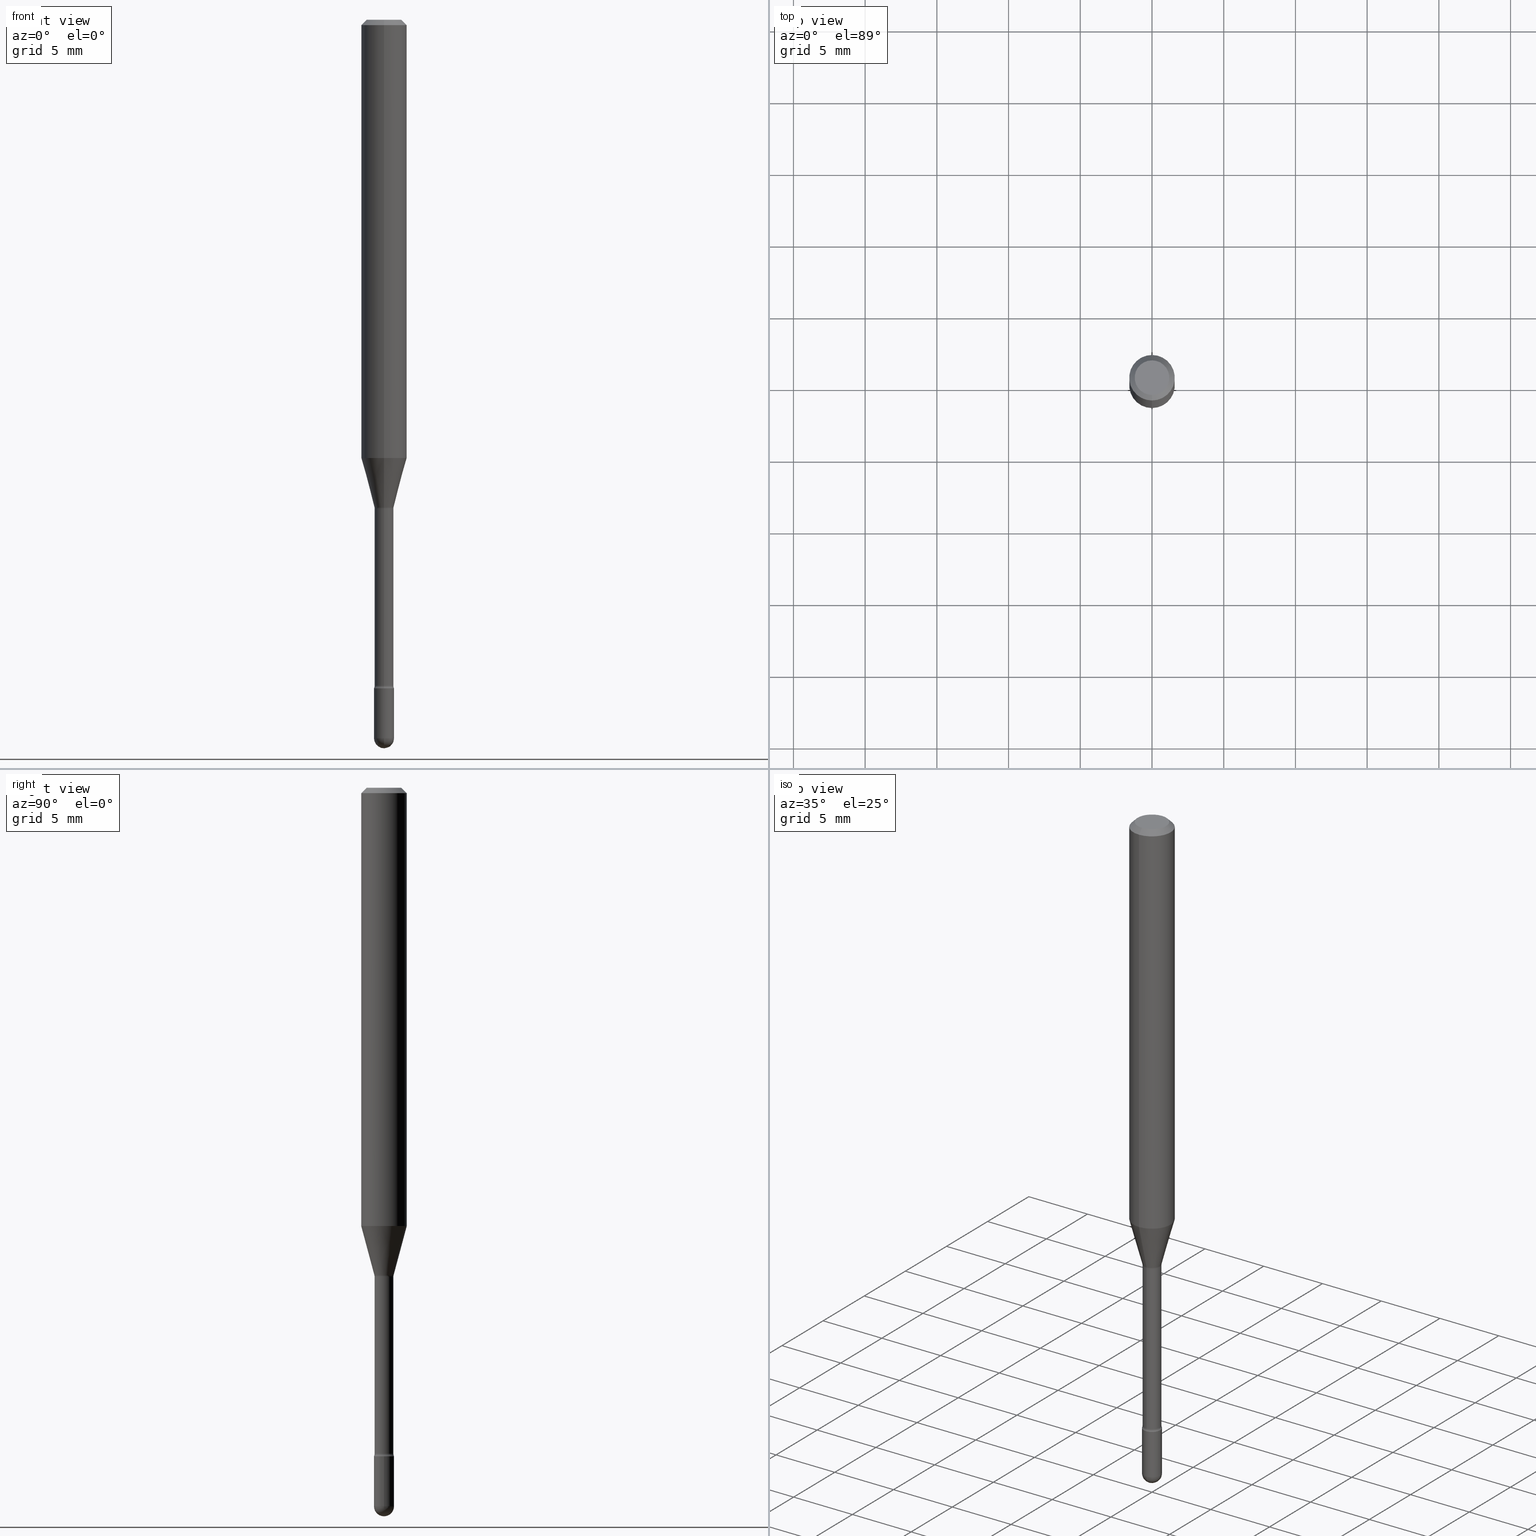
[diagram: canonical four-view strip — front | top / right | iso, engineering-drawing reading convention]
A machine part, canonical four-view strip (front | top / right | iso — engineering-drawing reading convention). The complete STEP part file that produces these views, byte-faithful:
ISO-10303-21;
HEADER;
FILE_DESCRIPTION (( 'STEP AP203' ),
    '1' );
FILE_NAME ('04577.STEP',
    '2024-04-09T22:05:07',
    ( '' ),
    ( '' ),
    'SwSTEP 2.0',
    'SolidWorks 2023',
    '' );
FILE_SCHEMA (( 'CONFIG_CONTROL_DESIGN' ));
ENDSEC;

DATA;
#1 = SPHERICAL_SURFACE ( 'NONE', #218, 0.02749999999999995504 ) ;
#2 = ORIENTED_EDGE ( 'NONE', *, *, #385, .T. ) ;
#3 = APPROVAL ( #21, 'UNSPECIFIED' ) ;
#4 = VECTOR ( 'NONE', #497, 39.37007874015748143 ) ;
#5 = AXIS2_PLACEMENT_3D ( 'NONE', #379, #328, #296 ) ;
#6 = CC_DESIGN_SECURITY_CLASSIFICATION ( #421, ( #31 ) ) ;
#7 = ORIENTED_EDGE ( 'NONE', *, *, #335, .T. ) ;
#8 = EDGE_CURVE ( 'NONE', #546, #187, #37, .T. ) ;
#9 = DIRECTION ( 'NONE',  ( 6.982962677686265922E-15, 1.000000000000000000, 0.000000000000000000 ) ) ;
#10 = ORIENTED_EDGE ( 'NONE', *, *, #281, .F. ) ;
#11 = CARTESIAN_POINT ( 'NONE',  ( 3.281757481429677785E-29, -4.685479927627891882E-15, -1.341974787463811047 ) ) ;
#12 = ORIENTED_EDGE ( 'NONE', *, *, #544, .F. ) ;
#13 = CALENDAR_DATE ( 2024, 9, 4 ) ;
#14 = CARTESIAN_POINT ( 'NONE',  ( 3.668119098727732486E-31, -5.237342459359611244E-17, -0.01500000000000008271 ) ) ;
#15 = ORIENTED_EDGE ( 'NONE', *, *, #351, .F. ) ;
#16 = APPROVAL_ROLE ( '' ) ;
#17 = ORIENTED_EDGE ( 'NONE', *, *, #99, .T. ) ;
#18 = DIRECTION ( 'NONE',  ( 1.000000000000000000, -7.105427357601001070E-15, 4.926316491942401120E-29 ) ) ;
#19 = AXIS2_PLACEMENT_3D ( 'NONE', #432, #309, #221 ) ;
#20 = AXIS2_PLACEMENT_3D ( 'NONE', #25, #542, #452 ) ;
#21 = APPROVAL_STATUS ( 'not_yet_approved' ) ;
#22 = EDGE_LOOP ( 'NONE', ( #283, #443, #486, #26 ) ) ;
#23 = DIRECTION ( 'NONE',  ( -1.000000000000000000, 6.982962677686265922E-15, -4.883557194083112340E-29 ) ) ;
#24 = EDGE_CURVE ( 'NONE', #423, #316, #556, .T. ) ;
#25 = CARTESIAN_POINT ( 'NONE',  ( 0.000000000000000000, 0.000000000000000000, 0.000000000000000000 ) ) ;
#26 = ORIENTED_EDGE ( 'NONE', *, *, #257, .F. ) ;
#27 = DIRECTION ( 'NONE',  ( 7.105427357601001859E-15, 1.000000000000000000, 0.000000000000000000 ) ) ;
#28 = ORIENTED_EDGE ( 'NONE', *, *, #248, .F. ) ;
#29 = CARTESIAN_POINT ( 'NONE',  ( -1.953992523339791111E-16, -0.02750000000000685924, -1.972499999999999698 ) ) ;
#30 = CIRCLE ( 'NONE', #119, 0.02750000000000000014 ) ;
#31 = PRODUCT_DEFINITION_FORMATION_WITH_SPECIFIED_SOURCE ( 'ANY', '', #153, .NOT_KNOWN. ) ;
#32 = ADVANCED_FACE ( 'NONE', ( #126 ), #347, .T. ) ;
#33 = CARTESIAN_POINT ( 'NONE',  ( 3.272188441113494852E-29, -4.672032449440782681E-15, -1.338092501787272903 ) ) ;
#34 = DIRECTION ( 'NONE',  ( -6.982962677686265133E-15, -1.000000000000000000, 3.491561639573056232E-15 ) ) ;
#35 = ORIENTED_EDGE ( 'NONE', *, *, #469, .F. ) ;
#36 = DIRECTION ( 'NONE',  ( -2.445412732485141982E-29, 3.491561639573055443E-15, 1.000000000000000000 ) ) ;
#37 = CIRCLE ( 'NONE', #217, 0.06250000000000000000 ) ;
#38 = EDGE_LOOP ( 'NONE', ( #489, #457, #399, #490, #344 ) ) ;
#39 = CIRCLE ( 'NONE', #5, 0.06250000000000000000 ) ;
#40 = CARTESIAN_POINT ( 'NONE',  ( -1.840786654676037546E-16, -0.02636111260566864622, -1.338092501787272903 ) ) ;
#41 = EDGE_CURVE ( 'NONE', #327, #564, #111, .T. ) ;
#42 = DIRECTION ( 'NONE',  ( -6.982962677686265922E-15, -1.000000000000000000, 0.000000000000000000 ) ) ;
#43 = UNCERTAINTY_MEASURE_WITH_UNIT (LENGTH_MEASURE( 1.000000000000000082E-05 ), #104, 'distance_accuracy_value', 'NONE');
#44 = CC_DESIGN_PERSON_AND_ORGANIZATION_ASSIGNMENT ( #488, #499, ( #31 ) ) ;
#45 = SPHERICAL_SURFACE ( 'NONE', #482, 0.02749999999999995504 ) ;
#46 = AXIS2_PLACEMENT_3D ( 'NONE', #92, #136, #563 ) ;
#47 = ADVANCED_FACE ( 'NONE', ( #483 ), #447, .T. ) ;
#48 = DIRECTION ( 'NONE',  ( -2.445412732485141702E-29, 3.491561639573055049E-15, 1.000000000000000000 ) ) ;
#49 = DIRECTION ( 'NONE',  ( -1.000000000000000000, 6.982962677686265922E-15, -4.883557194083112901E-29 ) ) ;
#50 = PRODUCT_DEFINITION_SHAPE ( 'NONE', 'NONE',  #364 ) ;
#51 = EDGE_LOOP ( 'NONE', ( #453, #355, #15, #552 ) ) ;
#52 = CONICAL_SURFACE ( 'NONE', #84, 0.06250000000000000000, 0.7853981633974483900 ) ;
#53 = CARTESIAN_POINT ( 'NONE',  ( 1.873069706851181121E-16, 0.02636111260565929953, -1.338092501787272903 ) ) ;
#54 = ORGANIZATION ( 'UNSPECIFIED', 'UNSPECIFIED', '' ) ;
#55 = ORIENTED_EDGE ( 'NONE', *, *, #403, .F. ) ;
#56 = CARTESIAN_POINT ( 'NONE',  ( -2.852540253834511513E-16, -0.04085000000000469506, -1.341974787463810603 ) ) ;
#57 = EDGE_CURVE ( 'NONE', #123, #187, #171, .T. ) ;
#58 = PERSON_AND_ORGANIZATION ( #407, #54 ) ;
#59 = CARTESIAN_POINT ( 'NONE',  ( 3.668119098727732486E-31, -5.237342459359611244E-17, -0.01500000000000008271 ) ) ;
#60 = EDGE_LOOP ( 'NONE', ( #275, #463, #310, #287 ) ) ;
#61 = DIRECTION ( 'NONE',  ( -2.445412732485141702E-29, 3.491561639573055049E-15, 1.000000000000000000 ) ) ;
#62 = COORDINATED_UNIVERSAL_TIME_OFFSET ( 5, 0, .BEHIND. ) ;
#63 = CIRCLE ( 'NONE', #429, 0.01500000000000003587 ) ;
#64 = EDGE_CURVE ( 'NONE', #197, #117, #30, .T. ) ;
#65 = CARTESIAN_POINT ( 'NONE',  ( -3.773273898774340269E-16, -0.04749999999999999362, 8.310596009284539957E-17 ) ) ;
#66 = VECTOR ( 'NONE', #414, 39.37007874015748143 ) ;
#67 = CC_DESIGN_APPROVAL ( #354, ( #31 ) ) ;
#68 = APPROVAL_DATE_TIME ( #279, #3 ) ;
#69 = DIRECTION ( 'NONE',  ( -2.445468806185136597E-29, 3.491481338843145583E-15, 1.000000000000000000 ) ) ;
#70 = EDGE_LOOP ( 'NONE', ( #150, #360 ) ) ;
#71 = CARTESIAN_POINT ( 'NONE',  ( 2.942370334292095243E-29, -4.201117975774851019E-15, -1.203220337902600967 ) ) ;
#72 = ADVANCED_BREP_SHAPE_REPRESENTATION ( '04577', ( #375, #190, #20 ), #300 ) ;
#73 = ORIENTED_EDGE ( 'NONE', *, *, #131, .F. ) ;
#74 = ADVANCED_FACE ( 'NONE', ( #140 ), #391, .T. ) ;
#75 = DIRECTION ( 'NONE',  ( -2.445468806185136877E-29, 3.491481338843145188E-15, 1.000000000000000000 ) ) ;
#76 = AXIS2_PLACEMENT_3D ( 'NONE', #244, #158, #454 ) ;
#77 = AXIS2_PLACEMENT_3D ( 'NONE', #172, #116, #517 ) ;
#78 = DIRECTION ( 'NONE',  ( 6.982962677686265922E-15, 1.000000000000000000, 0.000000000000000000 ) ) ;
#79 = EDGE_LOOP ( 'NONE', ( #444, #181, #2, #157 ) ) ;
#80 = CARTESIAN_POINT ( 'NONE',  ( 0.02750000000000000014, -1.920314736363723444E-16, 1.340948613343882413E-30 ) ) ;
#81 = APPLICATION_CONTEXT ( 'configuration controlled 3d designs of mechanical parts and assemblies' ) ;
#82 = DIRECTION ( 'NONE',  ( 1.000000000000000000, -6.982962677686279332E-15, 0.000000000000000000 ) ) ;
#83 = ADVANCED_FACE ( 'NONE', ( #231 ), #329, .F. ) ;
#84 = AXIS2_PLACEMENT_3D ( 'NONE', #59, #109, #325 ) ;
#85 = DIRECTION ( 'NONE',  ( -2.445468806185136597E-29, 3.491481338843145583E-15, 1.000000000000000000 ) ) ;
#86 = AXIS2_PLACEMENT_3D ( 'NONE', #464, #382, #246 ) ;
#87 = DIRECTION ( 'NONE',  ( 1.000000000000000000, -6.982962677686265922E-15, 4.883557194083112340E-29 ) ) ;
#88 = CARTESIAN_POINT ( 'NONE',  ( -4.364351673553912750E-16, -0.06250000000000005551, -0.01499999999999986587 ) ) ;
#89 = CONICAL_SURFACE ( 'NONE', #306, 0.02636111260566397288, 0.2617993877991502960 ) ;
#90 = CIRCLE ( 'NONE', #312, 0.02585000000000008819 ) ;
#91 = AXIS2_PLACEMENT_3D ( 'NONE', #527, #260, #229 ) ;
#92 = CARTESIAN_POINT ( 'NONE',  ( -1.169113584055446105E-44, 1.669184350826100908E-30, 4.780733988912460139E-16 ) ) ;
#93 = CARTESIAN_POINT ( 'NONE',  ( 4.487435259349726059E-29, -6.406868256777172111E-15, -1.834999999999999964 ) ) ;
#94 =( LENGTH_UNIT ( ) NAMED_UNIT ( * ) SI_UNIT ( $, .METRE. ) );
#95 = VERTEX_POINT ( 'NONE', #188 ) ;
#96 = VERTEX_POINT ( 'NONE', #142 ) ;
#97 = CARTESIAN_POINT ( 'NONE',  ( 1.953992523340722953E-16, 0.02749999999999357125, -1.834999999999999964 ) ) ;
#98 = ORIENTED_EDGE ( 'NONE', *, *, #64, .T. ) ;
#99 = EDGE_CURVE ( 'NONE', #316, #423, #90, .T. ) ;
#100 = AXIS2_PLACEMENT_3D ( 'NONE', #356, #69, #458 ) ;
#101 = APPROVAL_PERSON_ORGANIZATION ( #532, #354, #539 ) ;
#102 = ORIENTED_EDGE ( 'NONE', *, *, #403, .T. ) ;
#103 = FACE_OUTER_BOUND ( 'NONE', #22, .T. ) ;
#104 =( CONVERSION_BASED_UNIT ( 'INCH', #284 ) LENGTH_UNIT ( ) NAMED_UNIT ( #340 ) );
#105 = CARTESIAN_POINT ( 'NONE',  ( 2.902567075580337440E-16, 0.04084999999999532061, -1.341974787463811269 ) ) ;
#106 = EDGE_CURVE ( 'NONE', #96, #496, #63, .T. ) ;
#107 =( NAMED_UNIT ( * ) PLANE_ANGLE_UNIT ( ) SI_UNIT ( $, .RADIAN. ) );
#108 = VERTEX_POINT ( 'NONE', #233 ) ;
#109 = DIRECTION ( 'NONE',  ( 2.445412732485141702E-29, -3.491561639573055049E-15, -1.000000000000000000 ) ) ;
#110 = CALENDAR_DATE ( 2024, 9, 4 ) ;
#111 = CIRCLE ( 'NONE', #419, 0.01500000000000003587 ) ;
#112 = CARTESIAN_POINT ( 'NONE',  ( 4.364351673553919652E-16, 0.06249999999999995143, -0.01500000000000030129 ) ) ;
#113 = VECTOR ( 'NONE', #75, 39.37007874015748143 ) ;
#114 = APPROVAL_STATUS ( 'not_yet_approved' ) ;
#115 = CYLINDRICAL_SURFACE ( 'NONE', #192, 0.06250000000000000000 ) ;
#116 = DIRECTION ( 'NONE',  ( -2.445412732485141702E-29, 3.491561639573055049E-15, 1.000000000000000000 ) ) ;
#117 = VERTEX_POINT ( 'NONE', #404 ) ;
#118 = CARTESIAN_POINT ( 'NONE',  ( 1.895372747640517446E-16, 0.02584999999999370787, -1.828160592130893436 ) ) ;
#119 = AXIS2_PLACEMENT_3D ( 'NONE', #264, #85, #255 ) ;
#120 = CIRCLE ( 'NONE', #91, 0.02750000000000000014 ) ;
#121 = ORIENTED_EDGE ( 'NONE', *, *, #281, .T. ) ;
#122 = CARTESIAN_POINT ( 'NONE',  ( -0.02750000000000000014, 1.953992523340275521E-16, -1.352707149820099181E-30 ) ) ;
#123 = VERTEX_POINT ( 'NONE', #551 ) ;
#124 = EDGE_CURVE ( 'NONE', #308, #197, #438, .T. ) ;
#125 = CYLINDRICAL_SURFACE ( 'NONE', #348, 0.06250000000000000000 ) ;
#126 = FACE_OUTER_BOUND ( 'NONE', #269, .T. ) ;
#127 = APPLICATION_CONTEXT ( 'configuration controlled 3d designs of mechanical parts and assemblies' ) ;
#128 = DIRECTION ( 'NONE',  ( -2.445412732485141702E-29, 3.491561639573055049E-15, 1.000000000000000000 ) ) ;
#129 = AXIS2_PLACEMENT_3D ( 'NONE', #288, #209, #82 ) ;
#130 = CARTESIAN_POINT ( 'NONE',  ( 3.668119098727732486E-31, -5.237342459359611244E-17, -0.01500000000000008271 ) ) ;
#131 = EDGE_CURVE ( 'NONE', #123, #557, #548, .T. ) ;
#132 = CARTESIAN_POINT ( 'NONE',  ( -1.805095852181571408E-16, -0.02585000000000468173, -1.341974787463811047 ) ) ;
#133 = VERTEX_POINT ( 'NONE', #65 ) ;
#134 = AXIS2_PLACEMENT_3D ( 'NONE', #286, #541, #494 ) ;
#135 = CIRCLE ( 'NONE', #77, 0.02584999999999999451 ) ;
#136 = DIRECTION ( 'NONE',  ( -2.445412732485141702E-29, 3.491561639573055049E-15, 1.000000000000000000 ) ) ;
#137 = DIRECTION ( 'NONE',  ( -2.445412732485141702E-29, 3.491561639573055049E-15, 1.000000000000000000 ) ) ;
#138 = DIRECTION ( 'NONE',  ( -2.445412732485141702E-29, 3.491561639573055049E-15, 1.000000000000000000 ) ) ;
#139 = ADVANCED_FACE ( 'NONE', ( #367 ), #115, .T. ) ;
#140 = FACE_OUTER_BOUND ( 'NONE', #38, .T. ) ;
#141 = PERSON_AND_ORGANIZATION_ROLE ( 'classification_officer' ) ;
#142 = CARTESIAN_POINT ( 'NONE',  ( 3.156980902676051676E-16, 0.02636111260565929953, -1.338092501787272903 ) ) ;
#143 = CIRCLE ( 'NONE', #502, 0.01499999999999996822 ) ;
#144 = DATE_AND_TIME ( #13, #160 ) ;
#145 = AXIS2_PLACEMENT_3D ( 'NONE', #487, #182, #258 ) ;
#146 = ORIENTED_EDGE ( 'NONE', *, *, #131, .T. ) ;
#147 = DIRECTION ( 'NONE',  ( -2.445412732485141702E-29, 3.491561639573055049E-15, 1.000000000000000000 ) ) ;
#148 = ADVANCED_FACE ( 'NONE', ( #451 ), #89, .T. ) ;
#149 = DATE_AND_TIME ( #504, #278 ) ;
#150 = ORIENTED_EDGE ( 'NONE', *, *, #475, .T. ) ;
#151 = DIRECTION ( 'NONE',  ( -6.982962677686266711E-15, -1.000000000000000000, 3.491561639573055049E-15 ) ) ;
#152 = DATE_TIME_ROLE ( 'classification_date' ) ;
#153 = PRODUCT ( '04577', '04577', '', ( #189 ) ) ;
#154 = DIRECTION ( 'NONE',  ( 1.000000000000000000, -7.105427357601001070E-15, 4.926316491942401120E-29 ) ) ;
#155 = APPROVAL_DATE_TIME ( #273, #354 ) ;
#156 = AXIS2_PLACEMENT_3D ( 'NONE', #460, #23, #547 ) ;
#157 = ORIENTED_EDGE ( 'NONE', *, *, #224, .F. ) ;
#158 = DIRECTION ( 'NONE',  ( -2.445468806185136597E-29, 3.491481338843145583E-15, 1.000000000000000000 ) ) ;
#159 = AXIS2_PLACEMENT_3D ( 'NONE', #520, #440, #478 ) ;
#160 = LOCAL_TIME ( 18, 5, 7.000000000000000000, #400 ) ;
#161 = ADVANCED_FACE ( 'NONE', ( #282 ), #195, .T. ) ;
#162 = DIRECTION ( 'NONE',  ( -6.982962677686265922E-15, -1.000000000000000000, 3.491561639573055443E-15 ) ) ;
#163 = LINE ( 'NONE', #294, #562 ) ;
#164 = CC_DESIGN_PERSON_AND_ORGANIZATION_ASSIGNMENT ( #186, #353, ( #31 ) ) ;
#165 = DIRECTION ( 'NONE',  ( -2.445412732485141141E-29, 3.491561639573055443E-15, 1.000000000000000000 ) ) ;
#166 = TOROIDAL_SURFACE ( 'NONE', #227, 0.04085000000000000436, 0.01500000000000003587 ) ;
#167 = CIRCLE ( 'NONE', #159, 0.02584999999999999451 ) ;
#168 = ORIENTED_EDGE ( 'NONE', *, *, #303, .T. ) ;
#169 = EDGE_CURVE ( 'NONE', #108, #197, #377, .T. ) ;
#170 = FACE_OUTER_BOUND ( 'NONE', #553, .T. ) ;
#171 = LINE ( 'NONE', #394, #226 ) ;
#172 = CARTESIAN_POINT ( 'NONE',  ( 3.281682231938045412E-29, -4.685587689182845120E-15, -1.341974787463811047 ) ) ;
#173 = ORIENTED_EDGE ( 'NONE', *, *, #8, .F. ) ;
#174 = DIRECTION ( 'NONE',  ( 1.000000000000000000, -6.982962677686279332E-15, 0.000000000000000000 ) ) ;
#175 = EDGE_CURVE ( 'NONE', #133, #415, #459, .T. ) ;
#176 = AXIS2_PLACEMENT_3D ( 'NONE', #11, #389, #534 ) ;
#177 = CIRCLE ( 'NONE', #254, 0.02636111260566397288 ) ;
#178 = CARTESIAN_POINT ( 'NONE',  ( 4.470709700753047924E-29, -6.382988591833449480E-15, -1.828160592130893436 ) ) ;
#179 = FACE_OUTER_BOUND ( 'NONE', #376, .T. ) ;
#180 = EDGE_LOOP ( 'NONE', ( #321, #516 ) ) ;
#181 = ORIENTED_EDGE ( 'NONE', *, *, #183, .T. ) ;
#182 = DIRECTION ( 'NONE',  ( -2.445412732485141702E-29, 3.491561639573055049E-15, 1.000000000000000000 ) ) ;
#183 = EDGE_CURVE ( 'NONE', #316, #450, #143, .T. ) ;
#184 = FACE_OUTER_BOUND ( 'NONE', #536, .T. ) ;
#185 = ORIENTED_EDGE ( 'NONE', *, *, #124, .T. ) ;
#186 = PERSON_AND_ORGANIZATION ( #407, #54 ) ;
#187 = VERTEX_POINT ( 'NONE', #417 ) ;
#188 = CARTESIAN_POINT ( 'NONE',  ( 0.02750000000000000014, -6.598899730413544603E-15, -1.834999999999999964 ) ) ;
#189 = MECHANICAL_CONTEXT ( 'NONE', #81, 'mechanical' ) ;
#190 = MANIFOLD_SOLID_BREP ( 'Body-Move/Copy2[2]', #357 ) ;
#191 = DIRECTION ( 'NONE',  ( 2.445412732485141702E-29, -3.491561639573055049E-15, -1.000000000000000000 ) ) ;
#192 = AXIS2_PLACEMENT_3D ( 'NONE', #361, #147, #162 ) ;
#193 = COORDINATED_UNIVERSAL_TIME_OFFSET ( 5, 0, .BEHIND. ) ;
#194 = AXIS2_PLACEMENT_3D ( 'NONE', #396, #522, #337 ) ;
#195 = CYLINDRICAL_SURFACE ( 'NONE', #76, 0.02750000000000000014 ) ;
#196 = APPROVAL_ROLE ( '' ) ;
#197 = VERTEX_POINT ( 'NONE', #29 ) ;
#198 = DIRECTION ( 'NONE',  ( -6.982962677686265922E-15, -1.000000000000000000, 4.370956789862821150E-15 ) ) ;
#199 = ORIENTED_EDGE ( 'NONE', *, *, #341, .F. ) ;
#200 = PERSON_AND_ORGANIZATION ( #407, #54 ) ;
#201 = ORIENTED_EDGE ( 'NONE', *, *, #183, .F. ) ;
#202 = CARTESIAN_POINT ( 'NONE',  ( -4.364351673553916201E-16, -0.06250000000000000000, 6.962960013645620531E-16 ) ) ;
#203 = EDGE_CURVE ( 'NONE', #557, #546, #320, .T. ) ;
#204 = AXIS2_PLACEMENT_3D ( 'NONE', #71, #61, #198 ) ;
#205 = FACE_OUTER_BOUND ( 'NONE', #240, .T. ) ;
#206 = CARTESIAN_POINT ( 'NONE',  ( 1.836752971939861795E-16, 0.02585000000000004308, 3.878165305082824008E-16 ) ) ;
#207 = DIRECTION ( 'NONE',  ( -2.445468806185136877E-29, 3.491481338843145188E-15, 1.000000000000000000 ) ) ;
#208 = ORIENTED_EDGE ( 'NONE', *, *, #175, .T. ) ;
#209 = DIRECTION ( 'NONE',  ( -2.445468806185136597E-29, 3.491481338843145583E-15, 1.000000000000000000 ) ) ;
#210 = APPROVAL_PERSON_ORGANIZATION ( #58, #410, #16 ) ;
#211 = ADVANCED_FACE ( 'NONE', ( #205 ), #52, .T. ) ;
#212 = LOCAL_TIME ( 18, 5, 7.000000000000000000, #319 ) ;
#213 = DIRECTION ( 'NONE',  ( -1.000000000000000000, 6.982962677686265922E-15, -4.883557194083112340E-29 ) ) ;
#214 = DIRECTION ( 'NONE',  ( -6.982962677686265922E-15, -1.000000000000000000, 3.491561639573055443E-15 ) ) ;
#215 = CARTESIAN_POINT ( 'NONE',  ( 4.823687220200182004E-29, -6.886946940868104525E-15, -1.972500000000000142 ) ) ;
#216 = CARTESIAN_POINT ( 'NONE',  ( 3.272188441113494852E-29, -4.672032449440782681E-15, -1.338092501787272903 ) ) ;
#217 = AXIS2_PLACEMENT_3D ( 'NONE', #346, #48, #225 ) ;
#218 = AXIS2_PLACEMENT_3D ( 'NONE', #345, #349, #9 ) ;
#219 = DIRECTION ( 'NONE',  ( -6.982962677686265922E-15, -1.000000000000000000, 3.483106191921935554E-15 ) ) ;
#220 = ORIENTED_EDGE ( 'NONE', *, *, #427, .F. ) ;
#221 = DIRECTION ( 'NONE',  ( 1.000000000000000000, -6.982962677686266711E-15, 4.876176775795935793E-29 ) ) ;
#222 = CARTESIAN_POINT ( 'NONE',  ( 1.836752971940308241E-16, 0.02584999999999531423, -1.341974787463811047 ) ) ;
#223 = ORIENTED_EDGE ( 'NONE', *, *, #335, .F. ) ;
#224 = EDGE_CURVE ( 'NONE', #423, #251, #271, .T. ) ;
#225 = DIRECTION ( 'NONE',  ( -6.982962677686265922E-15, -1.000000000000000000, 3.483106191921935554E-15 ) ) ;
#226 = VECTOR ( 'NONE', #350, 39.37007874015748143 ) ;
#227 = AXIS2_PLACEMENT_3D ( 'NONE', #476, #307, #342 ) ;
#228 = LOCAL_TIME ( 18, 5, 7.000000000000000000, #62 ) ;
#229 = DIRECTION ( 'NONE',  ( 1.000000000000000000, -6.982962677686279332E-15, 0.000000000000000000 ) ) ;
#230 = ORIENTED_EDGE ( 'NONE', *, *, #566, .T. ) ;
#231 = FACE_OUTER_BOUND ( 'NONE', #60, .T. ) ;
#232 = APPROVAL_STATUS ( 'not_yet_approved' ) ;
#233 = CARTESIAN_POINT ( 'NONE',  ( 4.892113466017894923E-29, -6.981278788337462957E-15, -2.000000000000000000 ) ) ;
#234 = EDGE_LOOP ( 'NONE', ( #102, #208 ) ) ;
#235 = CARTESIAN_POINT ( 'NONE',  ( 4.823687220200181444E-29, -6.886946940868103736E-15, -1.972499999999999698 ) ) ;
#236 = CIRCLE ( 'NONE', #331, 0.02636111260566397288 ) ;
#237 = SECURITY_CLASSIFICATION_LEVEL ( 'unclassified' ) ;
#238 = ORIENTED_EDGE ( 'NONE', *, *, #224, .T. ) ;
#239 = DIRECTION ( 'NONE',  ( -6.982962677686265922E-15, -1.000000000000000000, 0.000000000000000000 ) ) ;
#240 = EDGE_LOOP ( 'NONE', ( #220, #55, #267, #304 ) ) ;
#241 = LINE ( 'NONE', #112, #66 ) ;
#242 = ADVANCED_FACE ( 'NONE', ( #103 ), #338, .T. ) ;
#243 = PERSON_AND_ORGANIZATION ( #407, #54 ) ;
#244 = CARTESIAN_POINT ( 'NONE',  ( 0.000000000000000000, 0.000000000000000000, 0.000000000000000000 ) ) ;
#245 = CLOSED_SHELL ( 'NONE', ( #74, #485, #47, #505, #161 ) ) ;
#246 = DIRECTION ( 'NONE',  ( -6.982962677686266711E-15, -1.000000000000000000, 0.000000000000000000 ) ) ;
#247 = VECTOR ( 'NONE', #433, 39.37007874015748143 ) ;
#248 = EDGE_CURVE ( 'NONE', #413, #95, #368, .T. ) ;
#249 = CARTESIAN_POINT ( 'NONE',  ( 3.316907271900976096E-16, 0.04749999999999999362, 3.181591267246560402E-17 ) ) ;
#250 = ORIENTED_EDGE ( 'NONE', *, *, #169, .T. ) ;
#251 = VERTEX_POINT ( 'NONE', #501 ) ;
#252 = DIRECTION ( 'NONE',  ( 2.445412732485141141E-29, -3.491561639573055443E-15, -1.000000000000000000 ) ) ;
#253 = AXIS2_PLACEMENT_3D ( 'NONE', #276, #543, #151 ) ;
#254 = AXIS2_PLACEMENT_3D ( 'NONE', #33, #558, #42 ) ;
#255 = DIRECTION ( 'NONE',  ( 1.000000000000000000, -6.982962677686279332E-15, 0.000000000000000000 ) ) ;
#256 = DIRECTION ( 'NONE',  ( 6.982962677686265922E-15, 1.000000000000000000, -3.491561639573055443E-15 ) ) ;
#257 = EDGE_CURVE ( 'NONE', #415, #187, #241, .T. ) ;
#258 = DIRECTION ( 'NONE',  ( -6.982962677686266711E-15, -1.000000000000000000, 0.000000000000000000 ) ) ;
#259 = CC_DESIGN_PERSON_AND_ORGANIZATION_ASSIGNMENT ( #243, #402, ( #153 ) ) ;
#260 = DIRECTION ( 'NONE',  ( -2.445468806185136597E-29, 3.491481338843145583E-15, 1.000000000000000000 ) ) ;
#261 = AXIS2_PLACEMENT_3D ( 'NONE', #215, #87, #78 ) ;
#262 = DIRECTION ( 'NONE',  ( -6.982962677686265922E-15, -1.000000000000000000, 0.000000000000000000 ) ) ;
#263 = ADVANCED_FACE ( 'NONE', ( #323 ), #506, .T. ) ;
#264 = CARTESIAN_POINT ( 'NONE',  ( 4.823687220200181444E-29, -6.886946940868103736E-15, -1.972499999999999698 ) ) ;
#265 = FACE_OUTER_BOUND ( 'NONE', #51, .T. ) ;
#266 = CC_DESIGN_PERSON_AND_ORGANIZATION_ASSIGNMENT ( #200, #365, ( #364 ) ) ;
#267 = ORIENTED_EDGE ( 'NONE', *, *, #257, .T. ) ;
#268 = LINE ( 'NONE', #53, #313 ) ;
#269 = EDGE_LOOP ( 'NONE', ( #121, #507, #352, #12 ) ) ;
#270 = EDGE_CURVE ( 'NONE', #557, #123, #39, .T. ) ;
#271 = CIRCLE ( 'NONE', #156, 0.01499999999999996822 ) ;
#272 = TOROIDAL_SURFACE ( 'NONE', #467, 0.04085000000000005987, 0.01499999999999996995 ) ;
#273 = DATE_AND_TIME ( #535, #228 ) ;
#274 = DIRECTION ( 'NONE',  ( 1.000000000000000000, -6.982962677686279332E-15, 0.000000000000000000 ) ) ;
#275 = ORIENTED_EDGE ( 'NONE', *, *, #566, .F. ) ;
#276 = CARTESIAN_POINT ( 'NONE',  ( 2.023145109584695408E-45, -2.889414348023718430E-31, -8.274321778687470589E-17 ) ) ;
#277 = DIRECTION ( 'NONE',  ( 6.982962677686265922E-15, 1.000000000000000000, -3.483106191921935554E-15 ) ) ;
#278 = LOCAL_TIME ( 18, 5, 7.000000000000000000, #193 ) ;
#279 = DATE_AND_TIME ( #110, #212 ) ;
#280 = ORIENTED_EDGE ( 'NONE', *, *, #381, .F. ) ;
#281 = EDGE_CURVE ( 'NONE', #327, #96, #177, .T. ) ;
#282 = FACE_OUTER_BOUND ( 'NONE', #525, .T. ) ;
#283 = ORIENTED_EDGE ( 'NONE', *, *, #175, .F. ) ;
#284 = LENGTH_MEASURE_WITH_UNIT ( LENGTH_MEASURE( 0.02539999999999999897 ), #94 );
#285 = ORIENTED_EDGE ( 'NONE', *, *, #341, .T. ) ;
#286 = CARTESIAN_POINT ( 'NONE',  ( 4.823687220200182004E-29, -6.886946940868104525E-15, -1.972500000000000142 ) ) ;
#287 = ORIENTED_EDGE ( 'NONE', *, *, #41, .F. ) ;
#288 = CARTESIAN_POINT ( 'NONE',  ( 4.823687220200181444E-29, -6.886946940868103736E-15, -1.972499999999999698 ) ) ;
#289 = ORIENTED_EDGE ( 'NONE', *, *, #544, .T. ) ;
#290 = ADVANCED_FACE ( 'NONE', ( #170 ), #125, .T. ) ;
#291 = AXIS2_PLACEMENT_3D ( 'NONE', #93, #472, #559 ) ;
#292 = DIRECTION ( 'NONE',  ( -2.445412732485141702E-29, 3.491561639573055049E-15, 1.000000000000000000 ) ) ;
#293 = AXIS2_PLACEMENT_3D ( 'NONE', #431, #165, #214 ) ;
#294 = CARTESIAN_POINT ( 'NONE',  ( -4.287811248607203282E-16, -0.06250000000000005551, -0.01499999999999986587 ) ) ;
#295 = VERTEX_POINT ( 'NONE', #510 ) ;
#296 = DIRECTION ( 'NONE',  ( -6.982962677686265922E-15, -1.000000000000000000, 4.370956789862821150E-15 ) ) ;
#297 = DIRECTION ( 'NONE',  ( -6.982962677686265922E-15, -1.000000000000000000, 0.000000000000000000 ) ) ;
#298 = CARTESIAN_POINT ( 'NONE',  ( -0.02750000000000000014, -6.451508346488609804E-15, -1.834999999999999964 ) ) ;
#299 = EDGE_CURVE ( 'NONE', #108, #295, #339, .T. ) ;
#300 =( GEOMETRIC_REPRESENTATION_CONTEXT ( 3 ) GLOBAL_UNCERTAINTY_ASSIGNED_CONTEXT ( ( #43 ) ) GLOBAL_UNIT_ASSIGNED_CONTEXT ( ( #104, #107, #449 ) ) REPRESENTATION_CONTEXT ( 'NONE', 'WORKASPACE' ) );
#301 = CARTESIAN_POINT ( 'NONE',  ( -1.840786654676037546E-16, -0.02636111260566864622, -1.338092501787272903 ) ) ;
#302 = DIRECTION ( 'NONE',  ( 6.982962677686265922E-15, 1.000000000000000000, 0.000000000000000000 ) ) ;
#303 = EDGE_CURVE ( 'NONE', #117, #95, #333, .T. ) ;
#304 = ORIENTED_EDGE ( 'NONE', *, *, #521, .T. ) ;
#305 = DIRECTION ( 'NONE',  ( -2.445412732485141702E-29, 3.491561639573055049E-15, 1.000000000000000000 ) ) ;
#306 = AXIS2_PLACEMENT_3D ( 'NONE', #314, #401, #363 ) ;
#307 = DIRECTION ( 'NONE',  ( -2.445412732485141702E-29, 3.491561639573055049E-15, 1.000000000000000000 ) ) ;
#308 = VERTEX_POINT ( 'NONE', #426 ) ;
#309 = DIRECTION ( 'NONE',  ( -2.445468806185136597E-29, 3.491481338843145583E-15, 1.000000000000000000 ) ) ;
#310 = ORIENTED_EDGE ( 'NONE', *, *, #469, .T. ) ;
#311 = CC_DESIGN_DATE_AND_TIME_ASSIGNMENT ( #144, #152, ( #421 ) ) ;
#312 = AXIS2_PLACEMENT_3D ( 'NONE', #441, #370, #239 ) ;
#313 = VECTOR ( 'NONE', #446, 39.37007874015748143 ) ;
#314 = CARTESIAN_POINT ( 'NONE',  ( 3.272188441113494852E-29, -4.672032449440782681E-15, -1.338092501787272903 ) ) ;
#315 = CALENDAR_DATE ( 2024, 9, 4 ) ;
#316 = VERTEX_POINT ( 'NONE', #118 ) ;
#317 = DIRECTION ( 'NONE',  ( 7.105427357601001859E-15, 1.000000000000000000, 0.000000000000000000 ) ) ;
#318 = EDGE_CURVE ( 'NONE', #295, #308, #378, .T. ) ;
#319 = COORDINATED_UNIVERSAL_TIME_OFFSET ( 5, 0, .BEHIND. ) ;
#320 = LINE ( 'NONE', #202, #4 ) ;
#321 = ORIENTED_EDGE ( 'NONE', *, *, #445, .F. ) ;
#322 = AXIS2_PLACEMENT_3D ( 'NONE', #374, #383, #174 ) ;
#323 = FACE_OUTER_BOUND ( 'NONE', #371, .T. ) ;
#324 = ORIENTED_EDGE ( 'NONE', *, *, #57, .T. ) ;
#325 = DIRECTION ( 'NONE',  ( 6.982962677686265922E-15, 1.000000000000000000, -3.483106191921935554E-15 ) ) ;
#326 = ADVANCED_FACE ( 'NONE', ( #422 ), #471, .F. ) ;
#327 = VERTEX_POINT ( 'NONE', #40 ) ;
#328 = DIRECTION ( 'NONE',  ( -2.445412732485141702E-29, 3.491561639573055049E-15, 1.000000000000000000 ) ) ;
#329 = TOROIDAL_SURFACE ( 'NONE', #176, 0.04085000000000000436, 0.01500000000000003587 ) ;
#330 = LINE ( 'NONE', #206, #247 ) ;
#331 = AXIS2_PLACEMENT_3D ( 'NONE', #216, #384, #262 ) ;
#332 = EDGE_LOOP ( 'NONE', ( #500, #230, #289, #73 ) ) ;
#333 = LINE ( 'NONE', #80, #481 ) ;
#334 = EDGE_LOOP ( 'NONE', ( #393, #146, #565, #531 ) ) ;
#335 = EDGE_CURVE ( 'NONE', #423, #564, #555, .T. ) ;
#336 = DIRECTION ( 'NONE',  ( -2.445412732485141702E-29, 3.491561639573055049E-15, 1.000000000000000000 ) ) ;
#337 = DIRECTION ( 'NONE',  ( -6.982962677686265922E-15, -1.000000000000000000, 3.491561639573055049E-15 ) ) ;
#338 = CONICAL_SURFACE ( 'NONE', #466, 0.06250000000000000000, 0.7853981633974483900 ) ;
#339 = CIRCLE ( 'NONE', #261, 0.02749999999999995504 ) ;
#340 = DIMENSIONAL_EXPONENTS ( 1.000000000000000000, 0.000000000000000000, 0.000000000000000000, 0.000000000000000000, 0.000000000000000000, 0.000000000000000000, 0.000000000000000000 ) ;
#341 = EDGE_CURVE ( 'NONE', #564, #496, #135, .T. ) ;
#342 = DIRECTION ( 'NONE',  ( -6.982962677686265922E-15, -1.000000000000000000, 3.491561639573055049E-15 ) ) ;
#343 = ORIENTED_EDGE ( 'NONE', *, *, #106, .F. ) ;
#344 = ORIENTED_EDGE ( 'NONE', *, *, #351, .T. ) ;
#345 = CARTESIAN_POINT ( 'NONE',  ( 4.823687220200182004E-29, -6.886946940868104525E-15, -1.972500000000000142 ) ) ;
#346 = CARTESIAN_POINT ( 'NONE',  ( 3.668119098727732486E-31, -5.237342459359611244E-17, -0.01500000000000008271 ) ) ;
#347 = CONICAL_SURFACE ( 'NONE', #513, 0.02636111260566397288, 0.2617993877991502960 ) ;
#348 = AXIS2_PLACEMENT_3D ( 'NONE', #424, #292, #561 ) ;
#349 = DIRECTION ( 'NONE',  ( -1.000000000000000000, 6.982962677686265922E-15, -4.883557194083112901E-29 ) ) ;
#350 = DIRECTION ( 'NONE',  ( -2.445412732485141982E-29, 3.491561639573055443E-15, 1.000000000000000000 ) ) ;
#351 = EDGE_CURVE ( 'NONE', #117, #295, #387, .T. ) ;
#352 = ORIENTED_EDGE ( 'NONE', *, *, #270, .F. ) ;
#353 = PERSON_AND_ORGANIZATION_ROLE ( 'creator' ) ;
#354 = APPROVAL ( #232, 'UNSPECIFIED' ) ;
#355 = ORIENTED_EDGE ( 'NONE', *, *, #299, .T. ) ;
#356 = CARTESIAN_POINT ( 'NONE',  ( 4.487435259349726059E-29, -6.406868256777172111E-15, -1.834999999999999964 ) ) ;
#357 = CLOSED_SHELL ( 'NONE', ( #83, #526, #462, #242, #290, #32, #148, #139, #211, #326, #362, #512, #263, #533 ) ) ;
#358 = CIRCLE ( 'NONE', #86, 0.02750000000000000014 ) ;
#359 = DATE_TIME_ROLE ( 'creation_date' ) ;
#360 = ORIENTED_EDGE ( 'NONE', *, *, #248, .T. ) ;
#361 = CARTESIAN_POINT ( 'NONE',  ( -1.169113584055446105E-44, 1.669184350826100908E-30, 4.780733988912460139E-16 ) ) ;
#362 = ADVANCED_FACE ( 'NONE', ( #519 ), #468, .F. ) ;
#363 = DIRECTION ( 'NONE',  ( -6.982962677686265922E-15, -1.000000000000000000, 0.000000000000000000 ) ) ;
#364 = PRODUCT_DEFINITION ( 'UNKNOWN', '', #31, #498 ) ;
#365 = PERSON_AND_ORGANIZATION_ROLE ( 'creator' ) ;
#366 = ORIENTED_EDGE ( 'NONE', *, *, #420, .F. ) ;
#367 = FACE_OUTER_BOUND ( 'NONE', #334, .T. ) ;
#368 = CIRCLE ( 'NONE', #100, 0.02750000000000000014 ) ;
#369 = CC_DESIGN_APPROVAL ( #410, ( #364 ) ) ;
#370 = DIRECTION ( 'NONE',  ( -2.445412732485141702E-29, 3.491561639573055049E-15, 1.000000000000000000 ) ) ;
#371 = EDGE_LOOP ( 'NONE', ( #280, #17, #7, #35 ) ) ;
#372 = CARTESIAN_POINT ( 'NONE',  ( 2.023145109584695408E-45, -2.889414348023718430E-31, -8.274321778687470589E-17 ) ) ;
#373 = ORIENTED_EDGE ( 'NONE', *, *, #299, .F. ) ;
#374 = CARTESIAN_POINT ( 'NONE',  ( 4.823687220200181444E-29, -6.886946940868103736E-15, -1.972499999999999698 ) ) ;
#375 = MANIFOLD_SOLID_BREP ( 'Body-Move/Copy2[1]', #245 ) ;
#376 = EDGE_LOOP ( 'NONE', ( #343, #10, #411, #285 ) ) ;
#377 = CIRCLE ( 'NONE', #134, 0.02749999999999995504 ) ;
#378 = CIRCLE ( 'NONE', #322, 0.02750000000000000014 ) ;
#379 = CARTESIAN_POINT ( 'NONE',  ( 2.942370334292095243E-29, -4.201117975774851019E-15, -1.203220337902600967 ) ) ;
#380 = CARTESIAN_POINT ( 'NONE',  ( 3.272188441113494852E-29, -4.672032449440782681E-15, -1.338092501787272903 ) ) ;
#381 = EDGE_CURVE ( 'NONE', #316, #496, #330, .T. ) ;
#382 = DIRECTION ( 'NONE',  ( -2.445412732485141702E-29, 3.491561639573055049E-15, 1.000000000000000000 ) ) ;
#383 = DIRECTION ( 'NONE',  ( -2.445468806185136597E-29, 3.491481338843145583E-15, 1.000000000000000000 ) ) ;
#384 = DIRECTION ( 'NONE',  ( -2.445412732485141702E-29, 3.491561639573055049E-15, 1.000000000000000000 ) ) ;
#385 = EDGE_CURVE ( 'NONE', #450, #251, #358, .T. ) ;
#386 = AXIS2_PLACEMENT_3D ( 'NONE', #235, #409, #274 ) ;
#387 = CIRCLE ( 'NONE', #129, 0.02750000000000000014 ) ;
#388 = FACE_OUTER_BOUND ( 'NONE', #509, .T. ) ;
#389 = DIRECTION ( 'NONE',  ( -2.445412732485141702E-29, 3.491561639573055049E-15, 1.000000000000000000 ) ) ;
#390 = FACE_OUTER_BOUND ( 'NONE', #79, .T. ) ;
#391 = CYLINDRICAL_SURFACE ( 'NONE', #19, 0.02750000000000000014 ) ;
#392 = DIRECTION ( 'NONE',  ( -2.445412732485141702E-29, 3.491561639573055049E-15, 1.000000000000000000 ) ) ;
#393 = ORIENTED_EDGE ( 'NONE', *, *, #57, .F. ) ;
#394 = CARTESIAN_POINT ( 'NONE',  ( 4.440892098500625669E-16, 0.06250000000000000000, 2.598507964179301227E-16 ) ) ;
#395 = VECTOR ( 'NONE', #36, 39.37007874015748143 ) ;
#396 = CARTESIAN_POINT ( 'NONE',  ( 4.470709700753047924E-29, -6.382988591833449480E-15, -1.828160592130893436 ) ) ;
#397 = ORIENTED_EDGE ( 'NONE', *, *, #203, .F. ) ;
#398 = DIRECTION ( 'NONE',  ( -6.982962677686268288E-15, -1.000000000000000000, 0.000000000000000000 ) ) ;
#399 = ORIENTED_EDGE ( 'NONE', *, *, #475, .F. ) ;
#400 = COORDINATED_UNIVERSAL_TIME_OFFSET ( 5, 0, .BEHIND. ) ;
#401 = DIRECTION ( 'NONE',  ( -2.445412732485141702E-29, 3.491561639573055049E-15, 1.000000000000000000 ) ) ;
#402 = PERSON_AND_ORGANIZATION_ROLE ( 'design_owner' ) ;
#403 = EDGE_CURVE ( 'NONE', #415, #133, #430, .T. ) ;
#404 = CARTESIAN_POINT ( 'NONE',  ( 0.02750000000000000014, -6.838939072459010416E-15, -1.972499999999999698 ) ) ;
#405 = AXIS2_PLACEMENT_3D ( 'NONE', #249, #252, #256 ) ;
#406 = CC_DESIGN_APPROVAL ( #3, ( #421 ) ) ;
#407 = PERSON ( 'UNSPECIFIED', 'UNSPECIFIED', 'UNSPECIFIED', ('UNSPECIFIED'), ('UNSPECIFIED'), ('UNSPECIFIED') ) ;
#408 = PERSON_AND_ORGANIZATION ( #407, #54 ) ;
#409 = DIRECTION ( 'NONE',  ( -2.445468806185136597E-29, 3.491481338843145583E-15, 1.000000000000000000 ) ) ;
#410 = APPROVAL ( #114, 'UNSPECIFIED' ) ;
#411 = ORIENTED_EDGE ( 'NONE', *, *, #41, .T. ) ;
#412 = APPROVAL_DATE_TIME ( #149, #410 ) ;
#413 = VERTEX_POINT ( 'NONE', #298 ) ;
#414 = DIRECTION ( 'NONE',  ( 4.937700262164548042E-15, 0.7071067811865451302, -0.7071067811865499042 ) ) ;
#415 = VERTEX_POINT ( 'NONE', #474 ) ;
#416 = APPLICATION_PROTOCOL_DEFINITION ( 'international standard', 'config_control_design', 1994, #127 ) ;
#417 = CARTESIAN_POINT ( 'NONE',  ( 4.440892098500920998E-16, 0.06249999999999993755, -0.01500000000000030129 ) ) ;
#418 = ORIENTED_EDGE ( 'NONE', *, *, #445, .T. ) ;
#419 = AXIS2_PLACEMENT_3D ( 'NONE', #56, #213, #398 ) ;
#420 = EDGE_CURVE ( 'NONE', #308, #413, #515, .T. ) ;
#421 = SECURITY_CLASSIFICATION ( '', '', #237 ) ;
#422 = FACE_OUTER_BOUND ( 'NONE', #234, .T. ) ;
#423 = VERTEX_POINT ( 'NONE', #554 ) ;
#424 = CARTESIAN_POINT ( 'NONE',  ( -1.169113584055446105E-44, 1.669184350826100908E-30, 4.780733988912460139E-16 ) ) ;
#425 = ORIENTED_EDGE ( 'NONE', *, *, #24, .F. ) ;
#426 = CARTESIAN_POINT ( 'NONE',  ( -0.02750000000000000014, -6.451508346488609804E-15, -1.972499999999999698 ) ) ;
#427 = EDGE_CURVE ( 'NONE', #133, #546, #163, .T. ) ;
#428 = ORIENTED_EDGE ( 'NONE', *, *, #318, .F. ) ;
#429 = AXIS2_PLACEMENT_3D ( 'NONE', #105, #18, #27 ) ;
#430 = CIRCLE ( 'NONE', #491, 0.04749999999999999362 ) ;
#431 = CARTESIAN_POINT ( 'NONE',  ( 1.920314736364172109E-16, 0.02749999999999359554, -1.834999999999999964 ) ) ;
#432 = CARTESIAN_POINT ( 'NONE',  ( 0.000000000000000000, 0.000000000000000000, 0.000000000000000000 ) ) ;
#433 = DIRECTION ( 'NONE',  ( -2.445412732485141982E-29, 3.491561639573055443E-15, 1.000000000000000000 ) ) ;
#434 = EDGE_CURVE ( 'NONE', #96, #123, #268, .T. ) ;
#435 = FACE_OUTER_BOUND ( 'NONE', #511, .T. ) ;
#436 = ORIENTED_EDGE ( 'NONE', *, *, #24, .T. ) ;
#437 = CARTESIAN_POINT ( 'NONE',  ( 4.823687220200182004E-29, -6.886946940868104525E-15, -1.972500000000000142 ) ) ;
#438 = CIRCLE ( 'NONE', #386, 0.02750000000000000014 ) ;
#439 = CIRCLE ( 'NONE', #145, 0.02750000000000000014 ) ;
#440 = DIRECTION ( 'NONE',  ( -2.445412732485141702E-29, 3.491561639573055049E-15, 1.000000000000000000 ) ) ;
#441 = CARTESIAN_POINT ( 'NONE',  ( 4.470607189024462812E-29, -6.383135394463389067E-15, -1.828160592130893436 ) ) ;
#442 = LINE ( 'NONE', #301, #549 ) ;
#443 = ORIENTED_EDGE ( 'NONE', *, *, #427, .T. ) ;
#444 = ORIENTED_EDGE ( 'NONE', *, *, #99, .F. ) ;
#445 = EDGE_CURVE ( 'NONE', #251, #450, #439, .T. ) ;
#446 = DIRECTION ( 'NONE',  ( 1.839019923739600315E-15, 0.2588190451025249583, 0.9659258262890670910 ) ) ;
#447 = PLANE ( 'NONE',  #291 ) ;
#448 = LOCAL_TIME ( 18, 5, 7.000000000000000000, #545 ) ;
#449 =( NAMED_UNIT ( * ) SI_UNIT ( $, .STERADIAN. ) SOLID_ANGLE_UNIT ( ) );
#450 = VERTEX_POINT ( 'NONE', #97 ) ;
#451 = FACE_OUTER_BOUND ( 'NONE', #332, .T. ) ;
#452 = DIRECTION ( 'NONE',  ( 1.000000000000000000, 0.000000000000000000, 0.000000000000000000 ) ) ;
#453 = ORIENTED_EDGE ( 'NONE', *, *, #169, .F. ) ;
#454 = DIRECTION ( 'NONE',  ( 1.000000000000000000, -6.982962677686266711E-15, 4.876176775795935793E-29 ) ) ;
#455 = DATE_AND_TIME ( #315, #448 ) ;
#456 = CC_DESIGN_PERSON_AND_ORGANIZATION_ASSIGNMENT ( #495, #141, ( #421 ) ) ;
#457 = ORIENTED_EDGE ( 'NONE', *, *, #420, .T. ) ;
#458 = DIRECTION ( 'NONE',  ( 1.000000000000000000, -6.982962677686279332E-15, 0.000000000000000000 ) ) ;
#459 = CIRCLE ( 'NONE', #253, 0.04749999999999999362 ) ;
#460 = CARTESIAN_POINT ( 'NONE',  ( -2.852540253834396142E-16, -0.04085000000000644366, -1.828160592130893214 ) ) ;
#461 = CARTESIAN_POINT ( 'NONE',  ( 2.902567075580459713E-16, 0.04084999999999366915, -1.828160592130893658 ) ) ;
#462 = ADVANCED_FACE ( 'NONE', ( #390 ), #272, .F. ) ;
#463 = ORIENTED_EDGE ( 'NONE', *, *, #106, .T. ) ;
#464 = CARTESIAN_POINT ( 'NONE',  ( 4.487332364110235309E-29, -6.407015608616555431E-15, -1.834999999999999964 ) ) ;
#465 = CC_DESIGN_DATE_AND_TIME_ASSIGNMENT ( #455, #359, ( #364 ) ) ;
#466 = AXIS2_PLACEMENT_3D ( 'NONE', #14, #191, #277 ) ;
#467 = AXIS2_PLACEMENT_3D ( 'NONE', #178, #138, #480 ) ;
#468 = PLANE ( 'NONE',  #293 ) ;
#469 = EDGE_CURVE ( 'NONE', #496, #564, #167, .T. ) ;
#470 = DIRECTION ( 'NONE',  ( -4.851104656540964275E-15, -0.7071067811865500152, -0.7071067811865450192 ) ) ;
#471 = PLANE ( 'NONE',  #405 ) ;
#472 = DIRECTION ( 'NONE',  ( -2.438088387897960049E-29, 3.491481338843145188E-15, 1.000000000000000000 ) ) ;
#473 = CIRCLE ( 'NONE', #538, 0.06250000000000000000 ) ;
#474 = CARTESIAN_POINT ( 'NONE',  ( 3.840629472727447874E-16, 0.04749999999999999362, -2.485923956665947867E-16 ) ) ;
#475 = EDGE_CURVE ( 'NONE', #95, #413, #120, .T. ) ;
#476 = CARTESIAN_POINT ( 'NONE',  ( 3.281757481429677785E-29, -4.685479927627891882E-15, -1.341974787463811047 ) ) ;
#477 = PRODUCT_RELATED_PRODUCT_CATEGORY ( 'detail', '', ( #153 ) ) ;
#478 = DIRECTION ( 'NONE',  ( -6.982962677686266711E-15, -1.000000000000000000, 0.000000000000000000 ) ) ;
#479 = AXIS2_PLACEMENT_3D ( 'NONE', #518, #305, #529 ) ;
#480 = DIRECTION ( 'NONE',  ( -6.982962677686265922E-15, -1.000000000000000000, 3.491561639573055049E-15 ) ) ;
#481 = VECTOR ( 'NONE', #207, 39.37007874015748143 ) ;
#482 = AXIS2_PLACEMENT_3D ( 'NONE', #437, #49, #302 ) ;
#483 = FACE_OUTER_BOUND ( 'NONE', #70, .T. ) ;
#484 = CARTESIAN_POINT ( 'NONE',  ( -4.364351673553623336E-16, -0.06250000000000421885, -1.203220337902600745 ) ) ;
#485 = ADVANCED_FACE ( 'NONE', ( #435 ), #45, .T. ) ;
#486 = ORIENTED_EDGE ( 'NONE', *, *, #8, .T. ) ;
#487 = CARTESIAN_POINT ( 'NONE',  ( 4.487332364110235309E-29, -6.407015608616555431E-15, -1.834999999999999964 ) ) ;
#488 = PERSON_AND_ORGANIZATION ( #407, #54 ) ;
#489 = ORIENTED_EDGE ( 'NONE', *, *, #318, .T. ) ;
#490 = ORIENTED_EDGE ( 'NONE', *, *, #303, .F. ) ;
#491 = AXIS2_PLACEMENT_3D ( 'NONE', #372, #128, #560 ) ;
#492 = APPROVAL_PERSON_ORGANIZATION ( #408, #3, #196 ) ;
#493 = APPLICATION_PROTOCOL_DEFINITION ( 'international standard', 'config_control_design', 1994, #81 ) ;
#494 = DIRECTION ( 'NONE',  ( -7.105427357601001070E-15, -1.000000000000000000, 0.000000000000000000 ) ) ;
#495 = PERSON_AND_ORGANIZATION ( #407, #54 ) ;
#496 = VERTEX_POINT ( 'NONE', #222 ) ;
#497 = DIRECTION ( 'NONE',  ( -2.445412732485141982E-29, 3.491561639573055443E-15, 1.000000000000000000 ) ) ;
#498 = DESIGN_CONTEXT ( 'detailed design', #127, 'design' ) ;
#499 = PERSON_AND_ORGANIZATION_ROLE ( 'design_supplier' ) ;
#500 = ORIENTED_EDGE ( 'NONE', *, *, #434, .F. ) ;
#501 = CARTESIAN_POINT ( 'NONE',  ( -1.920314736363273300E-16, -0.02750000000000639086, -1.834999999999999964 ) ) ;
#502 = AXIS2_PLACEMENT_3D ( 'NONE', #461, #154, #317 ) ;
#503 = AXIS2_PLACEMENT_3D ( 'NONE', #537, #336, #34 ) ;
#504 = CALENDAR_DATE ( 2024, 9, 4 ) ;
#505 = ADVANCED_FACE ( 'NONE', ( #265 ), #1, .T. ) ;
#506 = CYLINDRICAL_SURFACE ( 'NONE', #503, 0.02585000000000004308 ) ;
#507 = ORIENTED_EDGE ( 'NONE', *, *, #434, .T. ) ;
#508 = CARTESIAN_POINT ( 'NONE',  ( -1.805095852181902483E-16, -0.02585000000000004308, 5.683302672742097257E-16 ) ) ;
#509 = EDGE_LOOP ( 'NONE', ( #436, #524, #199, #223 ) ) ;
#510 = CARTESIAN_POINT ( 'NONE',  ( 1.920314736364203663E-16, 0.02749999999999308900, -1.972499999999999698 ) ) ;
#511 = EDGE_LOOP ( 'NONE', ( #373, #250, #550, #428 ) ) ;
#512 = ADVANCED_FACE ( 'NONE', ( #184 ), #528, .F. ) ;
#513 = AXIS2_PLACEMENT_3D ( 'NONE', #380, #137, #297 ) ;
#514 = SHAPE_DEFINITION_REPRESENTATION ( #50, #72 ) ;
#515 = LINE ( 'NONE', #122, #113 ) ;
#516 = ORIENTED_EDGE ( 'NONE', *, *, #385, .F. ) ;
#517 = DIRECTION ( 'NONE',  ( -6.982962677686266711E-15, -1.000000000000000000, 0.000000000000000000 ) ) ;
#518 = CARTESIAN_POINT ( 'NONE',  ( 4.470607189024462812E-29, -6.383135394463389067E-15, -1.828160592130893436 ) ) ;
#519 = FACE_OUTER_BOUND ( 'NONE', #180, .T. ) ;
#520 = CARTESIAN_POINT ( 'NONE',  ( 3.281682231938045412E-29, -4.685587689182845120E-15, -1.341974787463811047 ) ) ;
#521 = EDGE_CURVE ( 'NONE', #187, #546, #473, .T. ) ;
#522 = DIRECTION ( 'NONE',  ( -2.445412732485141702E-29, 3.491561639573055049E-15, 1.000000000000000000 ) ) ;
#523 = DIRECTION ( 'NONE',  ( -1.807323732225330139E-15, -0.2588190451025181860, 0.9659258262890689783 ) ) ;
#524 = ORIENTED_EDGE ( 'NONE', *, *, #381, .T. ) ;
#525 = EDGE_LOOP ( 'NONE', ( #366, #185, #98, #168, #28 ) ) ;
#526 = ADVANCED_FACE ( 'NONE', ( #388 ), #530, .T. ) ;
#527 = CARTESIAN_POINT ( 'NONE',  ( 4.487435259349726059E-29, -6.406868256777172111E-15, -1.834999999999999964 ) ) ;
#528 = TOROIDAL_SURFACE ( 'NONE', #194, 0.04085000000000005987, 0.01499999999999996995 ) ;
#529 = DIRECTION ( 'NONE',  ( -6.982962677686265922E-15, -1.000000000000000000, 0.000000000000000000 ) ) ;
#530 = CYLINDRICAL_SURFACE ( 'NONE', #46, 0.02585000000000004308 ) ;
#531 = ORIENTED_EDGE ( 'NONE', *, *, #521, .F. ) ;
#532 = PERSON_AND_ORGANIZATION ( #407, #54 ) ;
#533 = ADVANCED_FACE ( 'NONE', ( #179 ), #166, .F. ) ;
#534 = DIRECTION ( 'NONE',  ( -6.982962677686265922E-15, -1.000000000000000000, 3.491561639573055049E-15 ) ) ;
#535 = CALENDAR_DATE ( 2024, 9, 4 ) ;
#536 = EDGE_LOOP ( 'NONE', ( #201, #425, #238, #418 ) ) ;
#537 = CARTESIAN_POINT ( 'NONE',  ( -1.169113584055446105E-44, 1.669184350826100908E-30, 4.780733988912460139E-16 ) ) ;
#538 = AXIS2_PLACEMENT_3D ( 'NONE', #130, #392, #219 ) ;
#539 = APPROVAL_ROLE ( '' ) ;
#540 = ORIENTED_EDGE ( 'NONE', *, *, #270, .T. ) ;
#541 = DIRECTION ( 'NONE',  ( -1.000000000000000000, 7.105427357601001070E-15, -4.926315508542082329E-29 ) ) ;
#542 = DIRECTION ( 'NONE',  ( 0.000000000000000000, 0.000000000000000000, 1.000000000000000000 ) ) ;
#543 = DIRECTION ( 'NONE',  ( -2.445412732485141702E-29, 3.491561639573055049E-15, 1.000000000000000000 ) ) ;
#544 = EDGE_CURVE ( 'NONE', #327, #557, #442, .T. ) ;
#545 = COORDINATED_UNIVERSAL_TIME_OFFSET ( 5, 0, .BEHIND. ) ;
#546 = VERTEX_POINT ( 'NONE', #88 ) ;
#547 = DIRECTION ( 'NONE',  ( -6.982962677686266711E-15, -1.000000000000000000, 0.000000000000000000 ) ) ;
#548 = CIRCLE ( 'NONE', #204, 0.06250000000000000000 ) ;
#549 = VECTOR ( 'NONE', #523, 39.37007874015748143 ) ;
#550 = ORIENTED_EDGE ( 'NONE', *, *, #124, .F. ) ;
#551 = CARTESIAN_POINT ( 'NONE',  ( 4.440892098500918040E-16, 0.06249999999999577421, -1.203220337902601189 ) ) ;
#552 = ORIENTED_EDGE ( 'NONE', *, *, #64, .F. ) ;
#553 = EDGE_LOOP ( 'NONE', ( #540, #324, #173, #397 ) ) ;
#554 = CARTESIAN_POINT ( 'NONE',  ( -1.805095852181458995E-16, -0.02585000000000647197, -1.828160592130893436 ) ) ;
#555 = LINE ( 'NONE', #508, #395 ) ;
#556 = CIRCLE ( 'NONE', #479, 0.02585000000000008819 ) ;
#557 = VERTEX_POINT ( 'NONE', #484 ) ;
#558 = DIRECTION ( 'NONE',  ( -2.445412732485141702E-29, 3.491561639573055049E-15, 1.000000000000000000 ) ) ;
#559 = DIRECTION ( 'NONE',  ( 1.000000000000000000, -6.982962677686265922E-15, 4.876176775795935793E-29 ) ) ;
#560 = DIRECTION ( 'NONE',  ( -6.982962677686266711E-15, -1.000000000000000000, 3.491561639573055049E-15 ) ) ;
#561 = DIRECTION ( 'NONE',  ( -6.982962677686265922E-15, -1.000000000000000000, 3.491561639573055443E-15 ) ) ;
#562 = VECTOR ( 'NONE', #470, 39.37007874015748143 ) ;
#563 = DIRECTION ( 'NONE',  ( -6.982962677686265133E-15, -1.000000000000000000, 3.491561639573056232E-15 ) ) ;
#564 = VERTEX_POINT ( 'NONE', #132 ) ;
#565 = ORIENTED_EDGE ( 'NONE', *, *, #203, .T. ) ;
#566 = EDGE_CURVE ( 'NONE', #96, #327, #236, .T. ) ;
ENDSEC;
END-ISO-10303-21;
